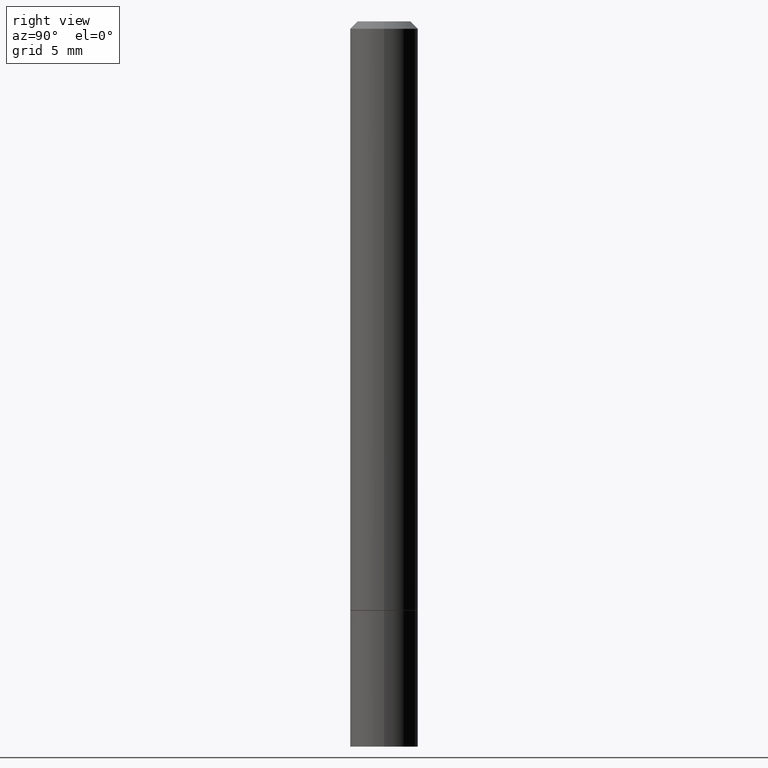
[diagram: clean part render]
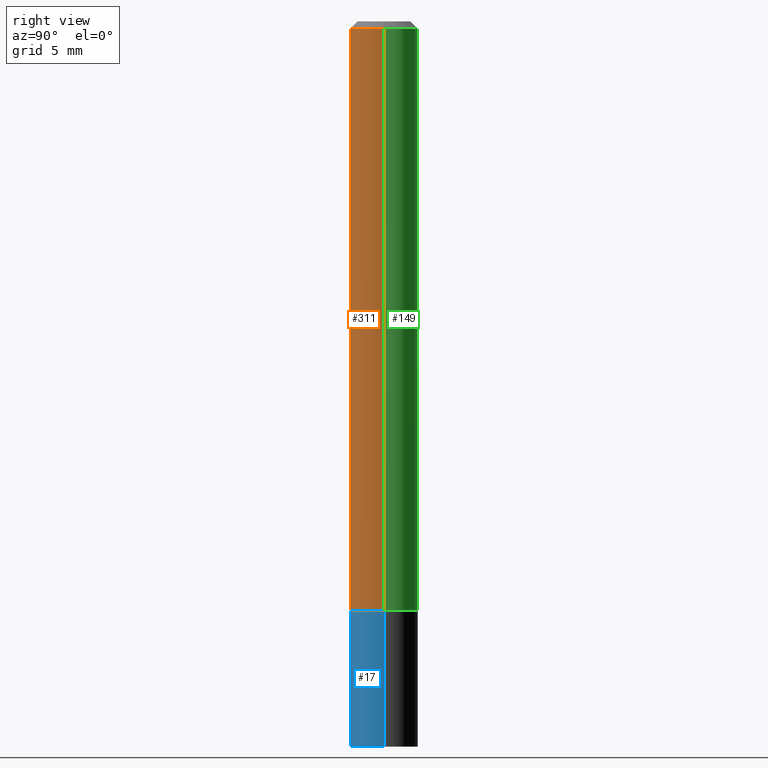
[diagram: same view with three faces highlighted in distinct colors, each labeled with its STEP entity id]
A machine part, right view with three faces highlighted in distinct colors.
Their STEP definitions:

[orange] entity #311 — the highlighted cylindrical surface (edge-blend (fillet) strip) has radius 2.3812 mm, axis along (-0, 0, 1).
#11 = EDGE_CURVE ( 'NONE', #252, #250, #248, .T. ) ;
#14 = DIRECTION ( 'NONE',  ( -2.445468806185136597E-29, 3.491481338843145583E-15, 1.000000000000000000 ) ) ;
#15 = DIRECTION ( 'NONE',  ( -2.445468806185136877E-29, 3.491481338843145188E-15, 1.000000000000000000 ) ) ;
#42 = DIRECTION ( 'NONE',  ( 1.000000000000000000, -6.982962677686266711E-15, 4.876176775795935793E-29 ) ) ;
#56 = VERTEX_POINT ( 'NONE', #295 ) ;
#72 = CARTESIAN_POINT ( 'NONE',  ( 0.09374999999999991673, -6.546527510330869125E-16, 4.571415727308685602E-30 ) ) ;
#103 = CARTESIAN_POINT ( 'NONE',  ( -0.09374999999999991673, 6.661338147750933326E-16, -4.611501647113969791E-30 ) ) ;
#104 = DIRECTION ( 'NONE',  ( -2.445468806185136597E-29, 3.491481338843145583E-15, 1.000000000000000000 ) ) ;
#113 = ORIENTED_EDGE ( 'NONE', *, *, #185, .F. ) ;
#127 = DIRECTION ( 'NONE',  ( 1.000000000000000000, -6.982962677686267499E-15, 0.000000000000000000 ) ) ;
#130 = VECTOR ( 'NONE', #15, 39.37007874015748143 ) ;
#138 = VERTEX_POINT ( 'NONE', #235 ) ;
#144 = DIRECTION ( 'NONE',  ( 1.000000000000000000, -6.982962677686261189E-15, 0.000000000000000000 ) ) ;
#160 = VECTOR ( 'NONE', #269, 39.37007874015748143 ) ;
#166 = ORIENTED_EDGE ( 'NONE', *, *, #11, .T. ) ;
#168 = CARTESIAN_POINT ( 'NONE',  ( 3.971441341244661927E-29, -5.670165694281268417E-15, -1.623999999999999888 ) ) ;
#172 = AXIS2_PLACEMENT_3D ( 'NONE', #213, #14, #127 ) ;
#185 = EDGE_CURVE ( 'NONE', #56, #138, #349, .T. ) ;
#190 = CARTESIAN_POINT ( 'NONE',  ( -0.09375000000000001388, -2.203863845753969567E-15, -1.623999999999999888 ) ) ;
#195 = LINE ( 'NONE', #103, #160 ) ;
#213 = CARTESIAN_POINT ( 'NONE',  ( 4.890937612370275786E-31, -6.982962677686296539E-17, -0.02000000000000001429 ) ) ;
#219 = LINE ( 'NONE', #72, #130 ) ;
#235 = CARTESIAN_POINT ( 'NONE',  ( 0.09374999999999981959, -7.130013140679428044E-16, -0.02000000000000001429 ) ) ;
#243 = AXIS2_PLACEMENT_3D ( 'NONE', #168, #310, #144 ) ;
#247 = EDGE_CURVE ( 'NONE', #250, #138, #219, .T. ) ;
#248 = CIRCLE ( 'NONE', #243, 0.09375000000000001388 ) ;
#250 = VERTEX_POINT ( 'NONE', #327 ) ;
#251 = EDGE_LOOP ( 'NONE', ( #278, #166, #325, #113 ) ) ;
#252 = VERTEX_POINT ( 'NONE', #190 ) ;
#269 = DIRECTION ( 'NONE',  ( -2.445468806185136877E-29, 3.491481338843145188E-15, 1.000000000000000000 ) ) ;
#278 = ORIENTED_EDGE ( 'NONE', *, *, #319, .F. ) ;
#295 = CARTESIAN_POINT ( 'NONE',  ( -0.09374999999999981959, 5.848231242562233185E-16, -0.02000000000000001429 ) ) ;
#299 = CYLINDRICAL_SURFACE ( 'NONE', #332, 0.09374999999999991673 ) ;
#300 = FACE_OUTER_BOUND ( 'NONE', #251, .T. ) ;
#310 = DIRECTION ( 'NONE',  ( -2.445468806185136597E-29, 3.491481338843145583E-15, 1.000000000000000000 ) ) ;
#311 = ADVANCED_FACE ( 'NONE', ( #300 ), #299, .T. ) ;
#319 = EDGE_CURVE ( 'NONE', #252, #56, #195, .T. ) ;
#325 = ORIENTED_EDGE ( 'NONE', *, *, #247, .T. ) ;
#327 = CARTESIAN_POINT ( 'NONE',  ( 0.09375000000000001388, -6.324818445314355132E-15, -1.623999999999999888 ) ) ;
#332 = AXIS2_PLACEMENT_3D ( 'NONE', #357, #104, #42 ) ;
#349 = CIRCLE ( 'NONE', #172, 0.09374999999999981959 ) ;
#357 = CARTESIAN_POINT ( 'NONE',  ( 0.000000000000000000, 0.000000000000000000, 0.000000000000000000 ) ) ;

[blue] entity #17 — the highlighted cylindrical surface (edge-blend (fillet) strip) has radius 2.3813 mm, axis along (-0, 0, 1).
#2 = FACE_OUTER_BOUND ( 'NONE', #336, .T. ) ;
#4 = CARTESIAN_POINT ( 'NONE',  ( 0.09375000000000001388, -6.328309926653198928E-15, -1.625000000000000000 ) ) ;
#16 = CARTESIAN_POINT ( 'NONE',  ( 0.09375000000000001388, -6.546527510330875041E-16, 4.571415727308690506E-30 ) ) ;
#17 = ADVANCED_FACE ( 'NONE', ( #2 ), #171, .T. ) ;
#28 = CARTESIAN_POINT ( 'NONE',  ( 0.000000000000000000, 0.000000000000000000, 0.000000000000000000 ) ) ;
#35 = AXIS2_PLACEMENT_3D ( 'NONE', #158, #73, #244 ) ;
#52 = VERTEX_POINT ( 'NONE', #71 ) ;
#54 = ORIENTED_EDGE ( 'NONE', *, *, #223, .T. ) ;
#71 = CARTESIAN_POINT ( 'NONE',  ( -0.09375000000000001388, -5.662176111878106581E-15, -1.625000000000000000 ) ) ;
#73 = DIRECTION ( 'NONE',  ( -2.445468806185136597E-29, 3.491481338843145583E-15, 1.000000000000000000 ) ) ;
#85 = ORIENTED_EDGE ( 'NONE', *, *, #109, .F. ) ;
#89 = CARTESIAN_POINT ( 'NONE',  ( -0.09375000000000001388, -5.662176111878106581E-15, -2.000000000000000000 ) ) ;
#98 = ORIENTED_EDGE ( 'NONE', *, *, #192, .F. ) ;
#109 = EDGE_CURVE ( 'NONE', #52, #126, #211, .T. ) ;
#111 = AXIS2_PLACEMENT_3D ( 'NONE', #28, #255, #342 ) ;
#126 = VERTEX_POINT ( 'NONE', #4 ) ;
#128 = LINE ( 'NONE', #16, #354 ) ;
#157 = VERTEX_POINT ( 'NONE', #89 ) ;
#158 = CARTESIAN_POINT ( 'NONE',  ( 4.890937612370273194E-29, -6.982962677686291165E-15, -2.000000000000000000 ) ) ;
#171 = CYLINDRICAL_SURFACE ( 'NONE', #111, 0.09375000000000001388 ) ;
#179 = CARTESIAN_POINT ( 'NONE',  ( 3.973886810050846970E-29, -5.673657175620112213E-15, -1.625000000000000000 ) ) ;
#191 = CARTESIAN_POINT ( 'NONE',  ( 0.09375000000000001388, -7.637615428719378669E-15, -2.000000000000000000 ) ) ;
#192 = EDGE_CURVE ( 'NONE', #157, #52, #239, .T. ) ;
#193 = VECTOR ( 'NONE', #358, 39.37007874015748143 ) ;
#208 = DIRECTION ( 'NONE',  ( 1.000000000000000000, -6.982962677686261189E-15, 0.000000000000000000 ) ) ;
#210 = DIRECTION ( 'NONE',  ( -2.445468806185136597E-29, 3.491481338843145583E-15, 1.000000000000000000 ) ) ;
#211 = CIRCLE ( 'NONE', #320, 0.09375000000000001388 ) ;
#214 = VERTEX_POINT ( 'NONE', #191 ) ;
#223 = EDGE_CURVE ( 'NONE', #214, #126, #128, .T. ) ;
#229 = ORIENTED_EDGE ( 'NONE', *, *, #305, .T. ) ;
#239 = LINE ( 'NONE', #271, #193 ) ;
#244 = DIRECTION ( 'NONE',  ( 1.000000000000000000, -6.982962677686261189E-15, 0.000000000000000000 ) ) ;
#255 = DIRECTION ( 'NONE',  ( -2.445468806185136597E-29, 3.491481338843145583E-15, 1.000000000000000000 ) ) ;
#271 = CARTESIAN_POINT ( 'NONE',  ( -0.09375000000000001388, 6.661338147750940229E-16, -4.611501647113973995E-30 ) ) ;
#305 = EDGE_CURVE ( 'NONE', #157, #214, #355, .T. ) ;
#320 = AXIS2_PLACEMENT_3D ( 'NONE', #179, #210, #208 ) ;
#324 = DIRECTION ( 'NONE',  ( -2.445468806185136877E-29, 3.491481338843145188E-15, 1.000000000000000000 ) ) ;
#336 = EDGE_LOOP ( 'NONE', ( #98, #229, #54, #85 ) ) ;
#342 = DIRECTION ( 'NONE',  ( 1.000000000000000000, -6.982962677686265922E-15, 4.876176775795935793E-29 ) ) ;
#354 = VECTOR ( 'NONE', #324, 39.37007874015748143 ) ;
#355 = CIRCLE ( 'NONE', #35, 0.09375000000000001388 ) ;
#358 = DIRECTION ( 'NONE',  ( -2.445468806185136877E-29, 3.491481338843145188E-15, 1.000000000000000000 ) ) ;

[green] entity #149 — the highlighted cylindrical surface (edge-blend (fillet) strip) has radius 2.3812 mm, axis along (-0, 0, 1).
#9 = CARTESIAN_POINT ( 'NONE',  ( 3.971441341244661927E-29, -5.670165694281268417E-15, -1.623999999999999888 ) ) ;
#15 = DIRECTION ( 'NONE',  ( -2.445468806185136877E-29, 3.491481338843145188E-15, 1.000000000000000000 ) ) ;
#22 = AXIS2_PLACEMENT_3D ( 'NONE', #351, #316, #123 ) ;
#49 = ORIENTED_EDGE ( 'NONE', *, *, #154, .F. ) ;
#56 = VERTEX_POINT ( 'NONE', #295 ) ;
#72 = CARTESIAN_POINT ( 'NONE',  ( 0.09374999999999991673, -6.546527510330869125E-16, 4.571415727308685602E-30 ) ) ;
#76 = EDGE_CURVE ( 'NONE', #250, #252, #87, .T. ) ;
#82 = ORIENTED_EDGE ( 'NONE', *, *, #76, .T. ) ;
#83 = EDGE_LOOP ( 'NONE', ( #82, #276, #49, #198 ) ) ;
#87 = CIRCLE ( 'NONE', #314, 0.09375000000000001388 ) ;
#91 = DIRECTION ( 'NONE',  ( -2.445468806185136597E-29, 3.491481338843145583E-15, 1.000000000000000000 ) ) ;
#93 = AXIS2_PLACEMENT_3D ( 'NONE', #236, #91, #288 ) ;
#103 = CARTESIAN_POINT ( 'NONE',  ( -0.09374999999999991673, 6.661338147750933326E-16, -4.611501647113969791E-30 ) ) ;
#120 = FACE_OUTER_BOUND ( 'NONE', #83, .T. ) ;
#123 = DIRECTION ( 'NONE',  ( 1.000000000000000000, -6.982962677686266711E-15, 4.876176775795935793E-29 ) ) ;
#130 = VECTOR ( 'NONE', #15, 39.37007874015748143 ) ;
#138 = VERTEX_POINT ( 'NONE', #235 ) ;
#149 = ADVANCED_FACE ( 'NONE', ( #120 ), #234, .T. ) ;
#154 = EDGE_CURVE ( 'NONE', #138, #56, #329, .T. ) ;
#155 = DIRECTION ( 'NONE',  ( -2.445468806185136597E-29, 3.491481338843145583E-15, 1.000000000000000000 ) ) ;
#160 = VECTOR ( 'NONE', #269, 39.37007874015748143 ) ;
#190 = CARTESIAN_POINT ( 'NONE',  ( -0.09375000000000001388, -2.203863845753969567E-15, -1.623999999999999888 ) ) ;
#195 = LINE ( 'NONE', #103, #160 ) ;
#198 = ORIENTED_EDGE ( 'NONE', *, *, #247, .F. ) ;
#219 = LINE ( 'NONE', #72, #130 ) ;
#234 = CYLINDRICAL_SURFACE ( 'NONE', #22, 0.09374999999999991673 ) ;
#235 = CARTESIAN_POINT ( 'NONE',  ( 0.09374999999999981959, -7.130013140679428044E-16, -0.02000000000000001429 ) ) ;
#236 = CARTESIAN_POINT ( 'NONE',  ( 4.890937612370275786E-31, -6.982962677686296539E-17, -0.02000000000000001429 ) ) ;
#247 = EDGE_CURVE ( 'NONE', #250, #138, #219, .T. ) ;
#250 = VERTEX_POINT ( 'NONE', #327 ) ;
#252 = VERTEX_POINT ( 'NONE', #190 ) ;
#269 = DIRECTION ( 'NONE',  ( -2.445468806185136877E-29, 3.491481338843145188E-15, 1.000000000000000000 ) ) ;
#276 = ORIENTED_EDGE ( 'NONE', *, *, #319, .T. ) ;
#288 = DIRECTION ( 'NONE',  ( 1.000000000000000000, -6.982962677686267499E-15, 0.000000000000000000 ) ) ;
#295 = CARTESIAN_POINT ( 'NONE',  ( -0.09374999999999981959, 5.848231242562233185E-16, -0.02000000000000001429 ) ) ;
#314 = AXIS2_PLACEMENT_3D ( 'NONE', #9, #155, #346 ) ;
#316 = DIRECTION ( 'NONE',  ( -2.445468806185136597E-29, 3.491481338843145583E-15, 1.000000000000000000 ) ) ;
#319 = EDGE_CURVE ( 'NONE', #252, #56, #195, .T. ) ;
#327 = CARTESIAN_POINT ( 'NONE',  ( 0.09375000000000001388, -6.324818445314355132E-15, -1.623999999999999888 ) ) ;
#329 = CIRCLE ( 'NONE', #93, 0.09374999999999981959 ) ;
#346 = DIRECTION ( 'NONE',  ( 1.000000000000000000, -6.982962677686261189E-15, 0.000000000000000000 ) ) ;
#351 = CARTESIAN_POINT ( 'NONE',  ( 0.000000000000000000, 0.000000000000000000, 0.000000000000000000 ) ) ;